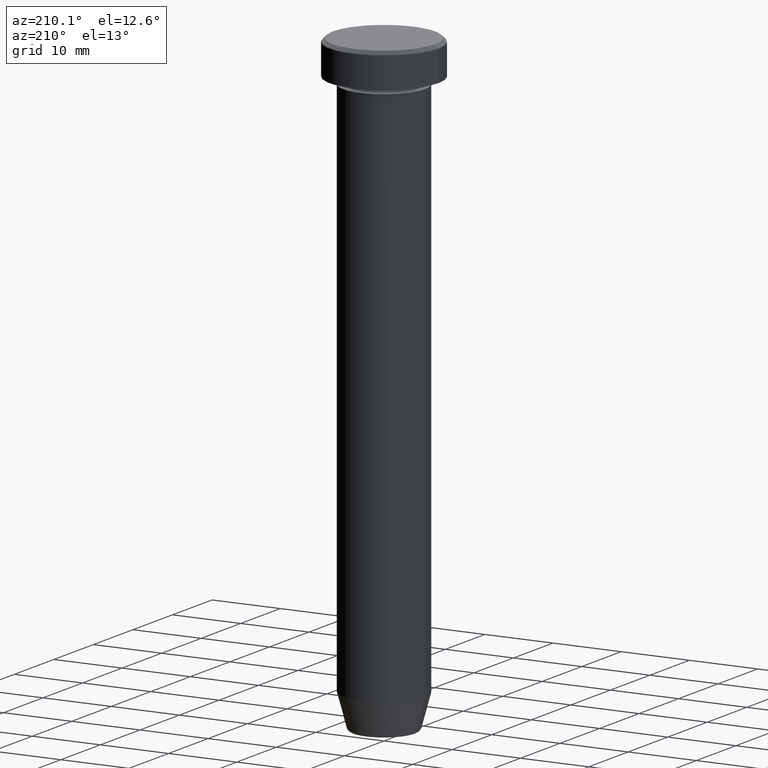
[diagram: clean part render]
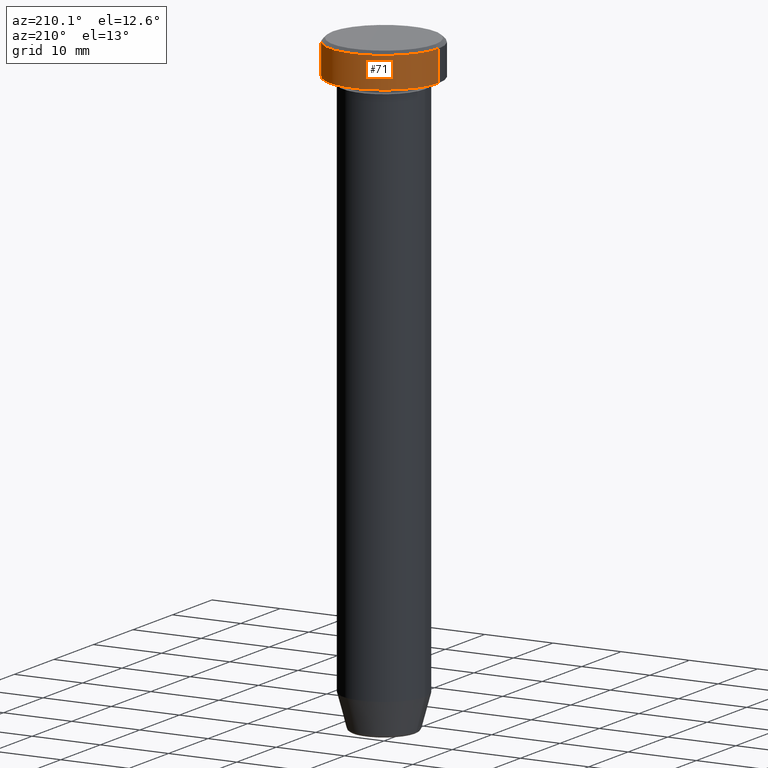
[diagram: same view with one face highlighted and labeled with its STEP entity id]
A machine part, auxiliary view. The second image highlights one B-rep face of the part: STEP entity #71.
In plain terms, the highlighted cylindrical surface (partial cylindrical patch) has radius 8 mm, axis along (-0, -0, 1).
Its self-contained STEP definition (entity closure, byte-faithful):
#17 = DIRECTION ( 'NONE',  ( 1.000000000000000000, 0.000000000000000000, 0.000000000000000000 ) ) ;
#33 = VERTEX_POINT ( 'NONE', #76 ) ;
#34 = LINE ( 'NONE', #211, #423 ) ;
#54 = AXIS2_PLACEMENT_3D ( 'NONE', #311, #252, #17 ) ;
#64 = CYLINDRICAL_SURFACE ( 'NONE', #233, 8.000000000000000000 ) ;
#71 = ADVANCED_FACE ( 'NONE', ( #385 ), #64, .T. ) ;
#76 = CARTESIAN_POINT ( 'NONE',  ( -8.000000000000000000, 9.797174393178825657E-16, -0.4999999999999935052 ) ) ;
#77 = CARTESIAN_POINT ( 'NONE',  ( -8.000000000000000000, 9.797174393178825657E-16, -5.000000000000000000 ) ) ;
#78 = EDGE_LOOP ( 'NONE', ( #590, #490, #108, #364 ) ) ;
#84 = DIRECTION ( 'NONE',  ( -0.000000000000000000, -0.000000000000000000, 1.000000000000000000 ) ) ;
#108 = ORIENTED_EDGE ( 'NONE', *, *, #318, .T. ) ;
#120 = DIRECTION ( 'NONE',  ( -0.000000000000000000, -0.000000000000000000, 1.000000000000000000 ) ) ;
#155 = DIRECTION ( 'NONE',  ( -0.000000000000000000, -0.000000000000000000, 1.000000000000000000 ) ) ;
#161 = DIRECTION ( 'NONE',  ( 1.000000000000000000, 0.000000000000000000, 0.000000000000000000 ) ) ;
#167 = VERTEX_POINT ( 'NONE', #77 ) ;
#195 = CARTESIAN_POINT ( 'NONE',  ( 0.000000000000000000, 0.000000000000000000, -0.4999999999999935052 ) ) ;
#206 = CARTESIAN_POINT ( 'NONE',  ( 8.000000000000000000, 0.000000000000000000, 0.000000000000000000 ) ) ;
#211 = CARTESIAN_POINT ( 'NONE',  ( -8.000000000000000000, 9.797174393178825657E-16, 0.000000000000000000 ) ) ;
#229 = VERTEX_POINT ( 'NONE', #592 ) ;
#233 = AXIS2_PLACEMENT_3D ( 'NONE', #565, #155, #341 ) ;
#252 = DIRECTION ( 'NONE',  ( -0.000000000000000000, -0.000000000000000000, 1.000000000000000000 ) ) ;
#271 = AXIS2_PLACEMENT_3D ( 'NONE', #195, #380, #161 ) ;
#311 = CARTESIAN_POINT ( 'NONE',  ( 0.000000000000000000, 0.000000000000000000, -5.000000000000000000 ) ) ;
#318 = EDGE_CURVE ( 'NONE', #33, #229, #562, .T. ) ;
#334 = LINE ( 'NONE', #206, #597 ) ;
#341 = DIRECTION ( 'NONE',  ( 1.000000000000000000, 0.000000000000000000, 0.000000000000000000 ) ) ;
#364 = ORIENTED_EDGE ( 'NONE', *, *, #550, .F. ) ;
#380 = DIRECTION ( 'NONE',  ( 0.000000000000000000, 0.000000000000000000, -1.000000000000000000 ) ) ;
#385 = FACE_OUTER_BOUND ( 'NONE', #78, .T. ) ;
#406 = CARTESIAN_POINT ( 'NONE',  ( 8.000000000000000000, 0.000000000000000000, -5.000000000000000000 ) ) ;
#423 = VECTOR ( 'NONE', #120, 1000.000000000000000 ) ;
#490 = ORIENTED_EDGE ( 'NONE', *, *, #589, .T. ) ;
#550 = EDGE_CURVE ( 'NONE', #574, #229, #334, .T. ) ;
#562 = CIRCLE ( 'NONE', #271, 8.000000000000000000 ) ;
#565 = CARTESIAN_POINT ( 'NONE',  ( 0.000000000000000000, 0.000000000000000000, 0.000000000000000000 ) ) ;
#574 = VERTEX_POINT ( 'NONE', #406 ) ;
#575 = EDGE_CURVE ( 'NONE', #574, #167, #585, .T. ) ;
#585 = CIRCLE ( 'NONE', #54, 8.000000000000000000 ) ;
#589 = EDGE_CURVE ( 'NONE', #167, #33, #34, .T. ) ;
#590 = ORIENTED_EDGE ( 'NONE', *, *, #575, .T. ) ;
#592 = CARTESIAN_POINT ( 'NONE',  ( 8.000000000000000000, 0.000000000000000000, -0.4999999999999935052 ) ) ;
#597 = VECTOR ( 'NONE', #84, 1000.000000000000000 ) ;